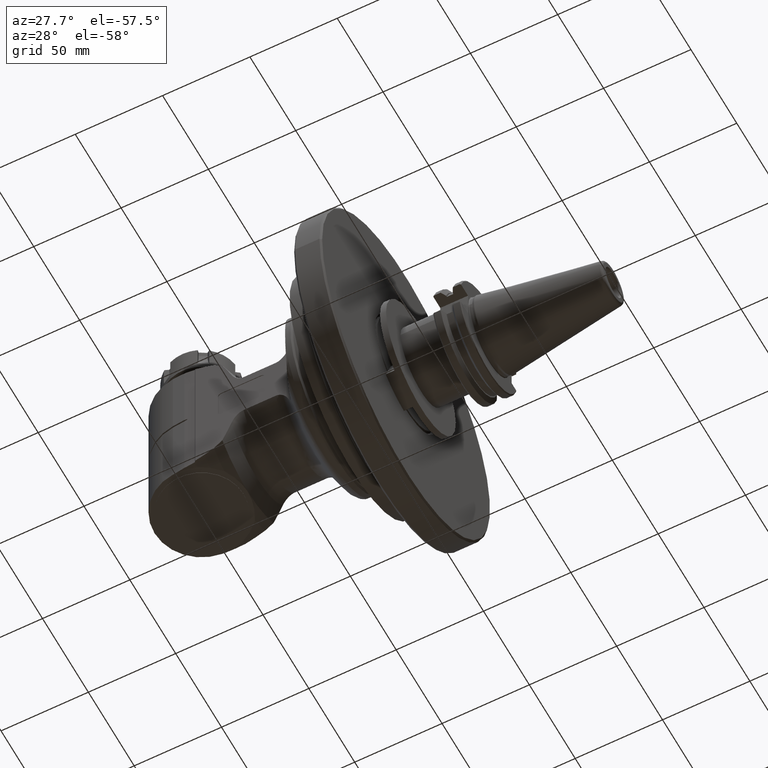
[diagram: clean part render]
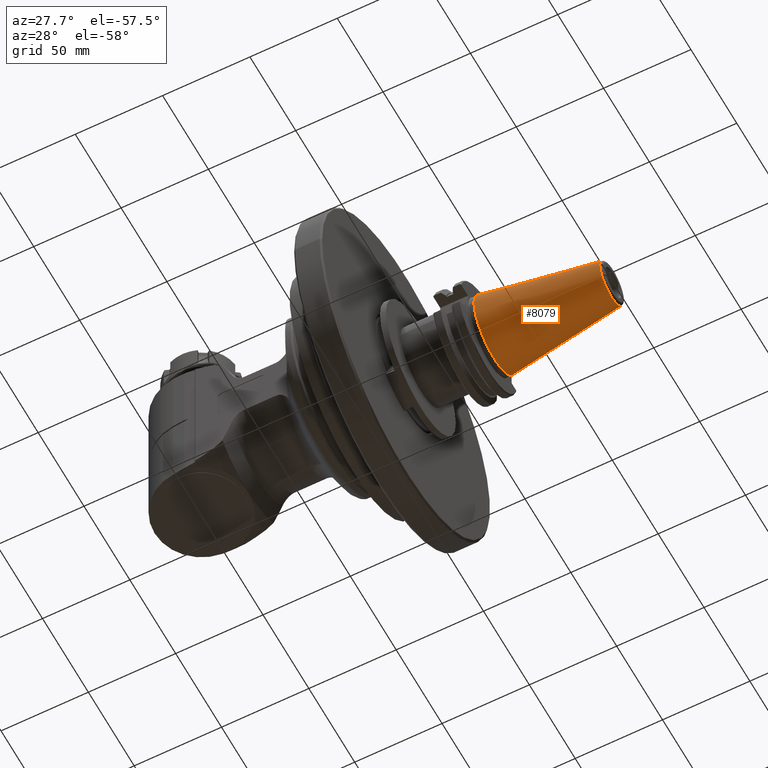
[diagram: same view with one face highlighted and labeled with its STEP entity id]
A machine part, auxiliary view. The second image highlights one B-rep face of the part: STEP entity #8079.
In plain terms, the highlighted conical surface has half-angle 8.297 deg.
Its self-contained STEP definition (entity closure, byte-faithful):
#160=CONICAL_SURFACE('',#8992,0.682757161774016,0.144812411498922);
#925=CIRCLE('',#8991,0.875);
#926=CIRCLE('',#8993,0.490514323548032);
#927=CIRCLE('',#8994,0.490514323548032);
#1411=FACE_OUTER_BOUND('',#1969,.T.);
#1969=EDGE_LOOP('',(#7264,#7265,#7266,#7267,#7268));
#2548=LINE('',#14597,#3113);
#3113=VECTOR('',#11243,0.682757161774016);
#3864=VERTEX_POINT('',#14592);
#3865=VERTEX_POINT('',#14596);
#3866=VERTEX_POINT('',#14598);
#5003=EDGE_CURVE('',#3864,#3864,#925,.T.);
#5005=EDGE_CURVE('',#3864,#3865,#2548,.T.);
#5006=EDGE_CURVE('',#3866,#3865,#926,.T.);
#5007=EDGE_CURVE('',#3865,#3866,#927,.T.);
#7264=ORIENTED_EDGE('',*,*,#5003,.F.);
#7265=ORIENTED_EDGE('',*,*,#5005,.T.);
#7266=ORIENTED_EDGE('',*,*,#5006,.F.);
#7267=ORIENTED_EDGE('',*,*,#5007,.F.);
#7268=ORIENTED_EDGE('',*,*,#5005,.F.);
#8079=ADVANCED_FACE('',(#1411),#160,.T.);
#8991=AXIS2_PLACEMENT_3D('',#14593,#11238,#11239);
#8992=AXIS2_PLACEMENT_3D('',#14595,#11241,#11242);
#8993=AXIS2_PLACEMENT_3D('',#14599,#11244,#11245);
#8994=AXIS2_PLACEMENT_3D('',#14600,#11246,#11247);
#11238=DIRECTION('center_axis',(-1.,0.,0.));
#11239=DIRECTION('ref_axis',(0.,1.,0.));
#11241=DIRECTION('center_axis',(-1.,0.,0.));
#11242=DIRECTION('ref_axis',(0.,-1.,0.));
#11243=DIRECTION('',(0.98953299358046,-0.144306807239621,1.76724869581176E-17));
#11244=DIRECTION('center_axis',(1.,0.,0.));
#11245=DIRECTION('ref_axis',(0.,1.,0.));
#11246=DIRECTION('center_axis',(1.,0.,0.));
#11247=DIRECTION('ref_axis',(0.,1.,0.));
#14592=CARTESIAN_POINT('',(1.65354330708665,0.874999999999872,1.07156594925378E-16));
#14593=CARTESIAN_POINT('Origin',(1.65354330708661,0.,0.));
#14595=CARTESIAN_POINT('Origin',(2.9717807128122,0.,0.));
#14596=CARTESIAN_POINT('',(4.29001811853937,0.490514323548032,0.));
#14597=CARTESIAN_POINT('',(2.9717807128122,0.682757161774016,-8.3613637276148E-17));
#14598=CARTESIAN_POINT('',(4.29001811853937,-0.490514323548032,6.00706796269026E-17));
#14599=CARTESIAN_POINT('Origin',(4.29001811853937,0.,0.));
#14600=CARTESIAN_POINT('Origin',(4.29001811853937,0.,0.));